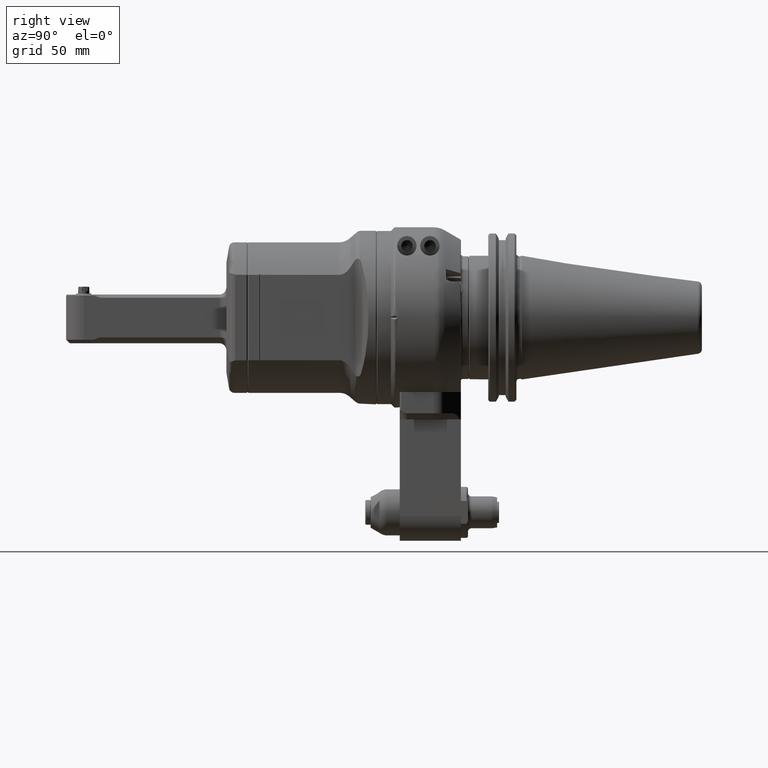
[diagram: clean part render]
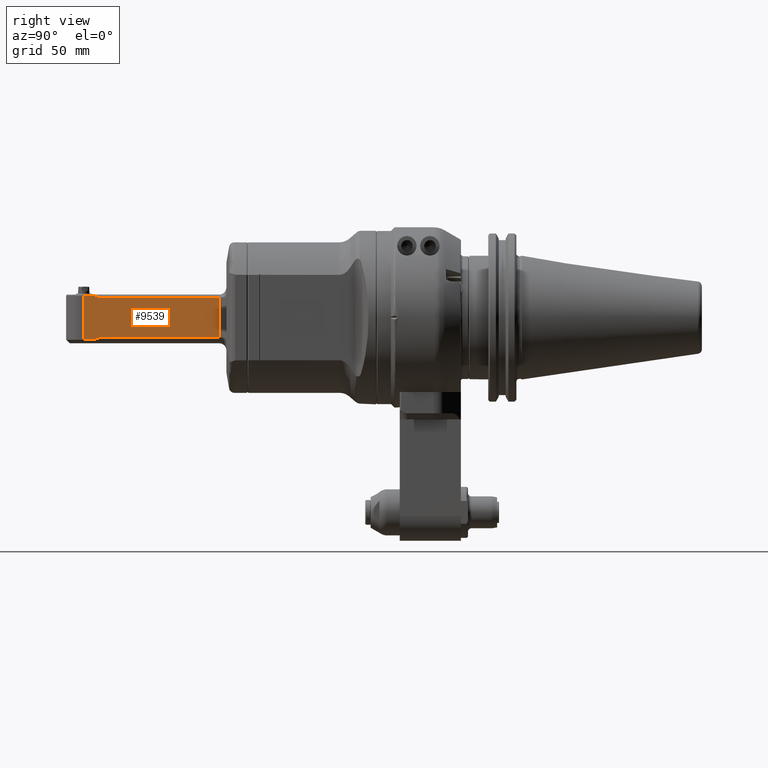
[diagram: same view with one face highlighted and labeled with its STEP entity id]
A machine part, right view. The second image highlights one B-rep face of the part: STEP entity #9539.
In plain terms, the highlighted planar face has unit normal (-1, -0, 0).
Its self-contained STEP definition (entity closure, byte-faithful):
#90=(
BOUNDED_CURVE()
B_SPLINE_CURVE(2,(#16926,#16927,#16928),.UNSPECIFIED.,.F.,.F.)
B_SPLINE_CURVE_WITH_KNOTS((3,3),(-5.27487874015469,-5.20902458569046),
 .UNSPECIFIED.)
CURVE()
GEOMETRIC_REPRESENTATION_ITEM()
RATIONAL_B_SPLINE_CURVE((1.09569442372085,1.1044719033567,1.11301530316994))
REPRESENTATION_ITEM('')
);
#91=(
BOUNDED_CURVE()
B_SPLINE_CURVE(2,(#16949,#16950,#16951),.UNSPECIFIED.,.F.,.F.)
B_SPLINE_CURVE_WITH_KNOTS((3,3),(-0.401960358142396,-0.336106189720162),
 .UNSPECIFIED.)
CURVE()
GEOMETRIC_REPRESENTATION_ITEM()
RATIONAL_B_SPLINE_CURVE((1.11301530341904,1.10447190179841,1.09569442025594))
REPRESENTATION_ITEM('')
);
#196=B_SPLINE_CURVE_WITH_KNOTS('',3,(#16930,#16931,#16932,#16933,#16934,
#16935),.UNSPECIFIED.,.F.,.F.,(4,2,4),(-3.12940599620332,-2.95668292882678,
-2.79548912180277),.UNSPECIFIED.);
#197=B_SPLINE_CURVE_WITH_KNOTS('',3,(#16943,#16944,#16945,#16946,#16947,
#16948),.UNSPECIFIED.,.F.,.F.,(4,2,4),(-3.46332286889354,-3.30212906357985,
-3.12940599620332),.UNSPECIFIED.);
#823=LINE('',#16917,#1475);
#825=LINE('',#16922,#1477);
#826=LINE('',#16924,#1478);
#827=LINE('',#16937,#1479);
#828=LINE('',#16939,#1480);
#829=LINE('',#16941,#1481);
#1475=VECTOR('',#12981,25.);
#1477=VECTOR('',#12987,10.);
#1478=VECTOR('',#12988,5.83792595572205);
#1479=VECTOR('',#12989,66.18836509642);
#1480=VECTOR('',#12990,22.360679775);
#1481=VECTOR('',#12991,66.18836509642);
#2084=PLANE('',#10577);
#2557=FACE_OUTER_BOUND('',#3184,.T.);
#3184=EDGE_LOOP('',(#8257,#8258,#8259,#8260,#8261,#8262,#8263,#8264,#8265,
#8266));
#4576=VERTEX_POINT('',#16913);
#4577=VERTEX_POINT('',#16915);
#4578=VERTEX_POINT('',#16921);
#4579=VERTEX_POINT('',#16923);
#4580=VERTEX_POINT('',#16925);
#4581=VERTEX_POINT('',#16929);
#4582=VERTEX_POINT('',#16936);
#4583=VERTEX_POINT('',#16938);
#4584=VERTEX_POINT('',#16940);
#4585=VERTEX_POINT('',#16942);
#5848=EDGE_CURVE('',#4577,#4576,#823,.T.);
#5850=EDGE_CURVE('',#4576,#4578,#825,.T.);
#5851=EDGE_CURVE('',#4579,#4577,#826,.T.);
#5852=EDGE_CURVE('',#4579,#4580,#90,.T.);
#5853=EDGE_CURVE('',#4581,#4580,#196,.T.);
#5854=EDGE_CURVE('',#4582,#4581,#827,.T.);
#5855=EDGE_CURVE('',#4583,#4582,#828,.T.);
#5856=EDGE_CURVE('',#4584,#4583,#829,.T.);
#5857=EDGE_CURVE('',#4585,#4584,#197,.T.);
#5858=EDGE_CURVE('',#4585,#4578,#91,.T.);
#8257=ORIENTED_EDGE('',*,*,#5850,.F.);
#8258=ORIENTED_EDGE('',*,*,#5848,.F.);
#8259=ORIENTED_EDGE('',*,*,#5851,.F.);
#8260=ORIENTED_EDGE('',*,*,#5852,.T.);
#8261=ORIENTED_EDGE('',*,*,#5853,.F.);
#8262=ORIENTED_EDGE('',*,*,#5854,.F.);
#8263=ORIENTED_EDGE('',*,*,#5855,.F.);
#8264=ORIENTED_EDGE('',*,*,#5856,.F.);
#8265=ORIENTED_EDGE('',*,*,#5857,.F.);
#8266=ORIENTED_EDGE('',*,*,#5858,.T.);
#9539=ADVANCED_FACE('',(#2557),#2084,.F.);
#10577=AXIS2_PLACEMENT_3D('',#16920,#12985,#12986);
#12981=DIRECTION('',(0.,-1.,0.));
#12985=DIRECTION('center_axis',(0.,0.,-1.));
#12986=DIRECTION('ref_axis',(-1.,0.,0.));
#12987=DIRECTION('',(-1.,0.,0.));
#12988=DIRECTION('',(0.999999999999992,9.46114266704692E-8,-8.92196987264193E-8));
#12989=DIRECTION('',(1.,0.,0.));
#12990=DIRECTION('',(0.,1.,0.));
#12991=DIRECTION('',(-1.,0.,0.));
#16913=CARTESIAN_POINT('',(161.5585,-12.5,10.));
#16915=CARTESIAN_POINT('',(161.5585,12.5,10.));
#16917=CARTESIAN_POINT('',(161.5585,12.5,10.));
#16920=CARTESIAN_POINT('Origin',(147.8885,51.0000024,10.));
#16921=CARTESIAN_POINT('',(155.720571725246,-12.4999999881321,10.0000000061769));
#16922=CARTESIAN_POINT('',(153.5342384371,-12.5,10.));
#16923=CARTESIAN_POINT('',(155.720571591106,12.4999996855124,10.0000002687745));
#16924=CARTESIAN_POINT('',(155.7205740443,12.49999944767,10.00000052086));
#16925=CARTESIAN_POINT('',(154.608566531639,11.9773082031587,9.99999999959642));
#16926=CARTESIAN_POINT('Ctrl Pts',(155.720571499599,12.4999998821394,10.));
#16927=CARTESIAN_POINT('Ctrl Pts',(155.15269606505,12.2353078452597,10.));
#16928=CARTESIAN_POINT('Ctrl Pts',(154.608566531882,11.9773082029326,10.));
#16929=CARTESIAN_POINT('',(151.1883650964,11.1803398875,10.));
#16930=CARTESIAN_POINT('Ctrl Pts',(151.1883650964,11.1803398874989,10.));
#16931=CARTESIAN_POINT('Ctrl Pts',(151.764108654322,11.1803398874989,10.));
#16932=CARTESIAN_POINT('Ctrl Pts',(152.390041188985,11.2520956734236,10.));
#16933=CARTESIAN_POINT('Ctrl Pts',(153.565278198516,11.5397298086509,10.));
#16934=CARTESIAN_POINT('Ctrl Pts',(154.117307988055,11.7443774006969,10.));
#16935=CARTESIAN_POINT('Ctrl Pts',(154.608566531768,11.9773082028881,10.));
#16936=CARTESIAN_POINT('',(85.,11.1803398875,10.));
#16937=CARTESIAN_POINT('',(85.,11.1803398875,10.));
#16938=CARTESIAN_POINT('',(85.,-11.1803398875,10.));
#16939=CARTESIAN_POINT('',(85.,-11.1803398875,10.));
#16940=CARTESIAN_POINT('',(151.1883650964,-11.1803398875,10.));
#16941=CARTESIAN_POINT('',(151.1883650964,-11.1803398875,10.));
#16942=CARTESIAN_POINT('',(154.60856651698,-11.9773081936817,10.0000000026161));
#16943=CARTESIAN_POINT('Ctrl Pts',(154.60856651613,-11.9773081954736,10.));
#16944=CARTESIAN_POINT('Ctrl Pts',(154.117307976365,-11.7443773963009,10.));
#16945=CARTESIAN_POINT('Ctrl Pts',(153.565278192497,-11.5397298071777,10.));
#16946=CARTESIAN_POINT('Ctrl Pts',(152.390041188985,-11.2520956734236,10.));
#16947=CARTESIAN_POINT('Ctrl Pts',(151.764108654322,-11.1803398874989,10.));
#16948=CARTESIAN_POINT('Ctrl Pts',(151.1883650964,-11.1803398874989,10.));
#16949=CARTESIAN_POINT('Ctrl Pts',(154.608566516138,-11.9773081954678,10.));
#16950=CARTESIAN_POINT('Ctrl Pts',(155.152696165065,-12.235307892748,10.));
#16951=CARTESIAN_POINT('Ctrl Pts',(155.720571725563,-12.4999999874634,10.));